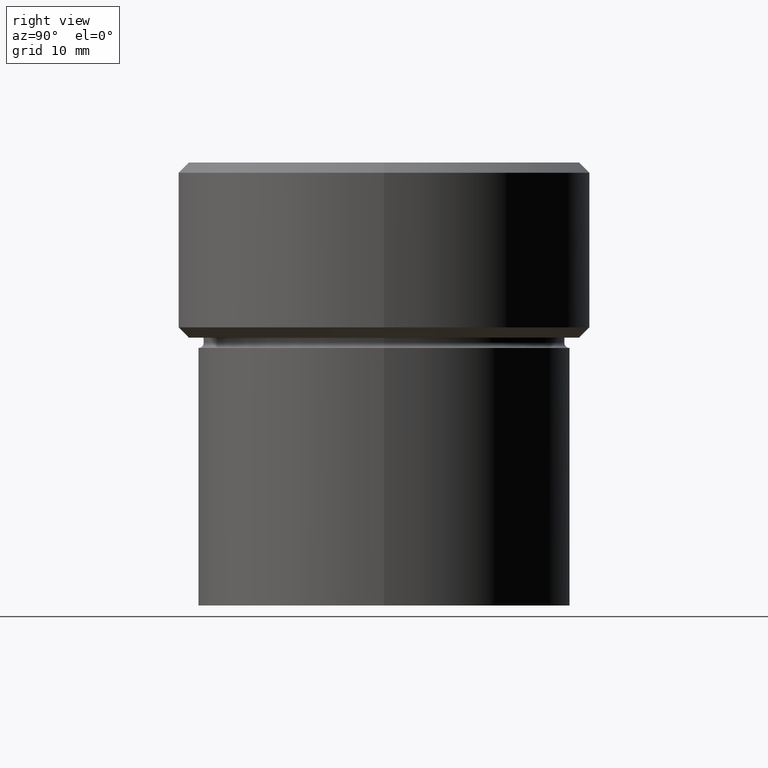
[diagram: clean part render]
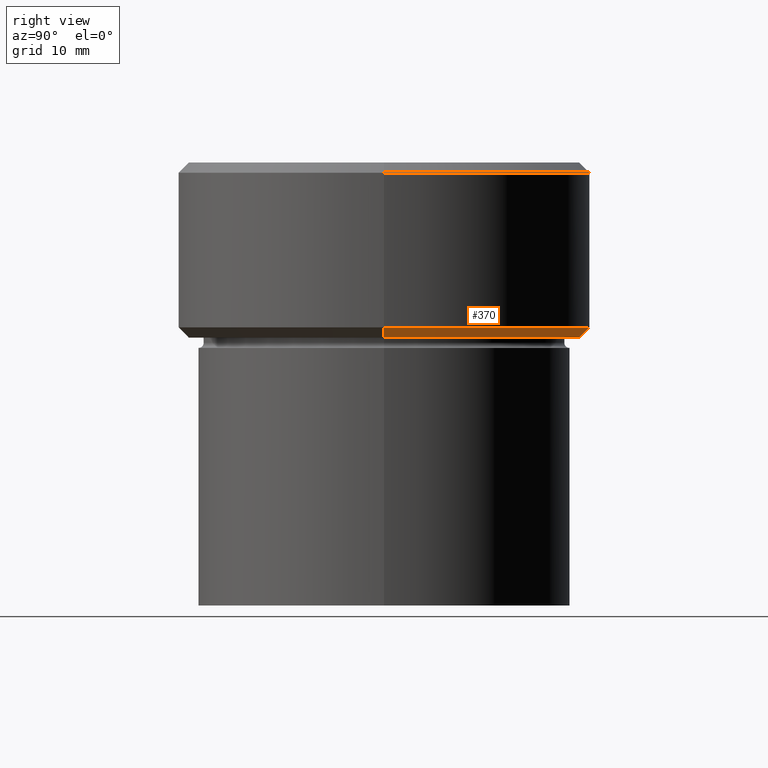
[diagram: same view with one face highlighted and labeled with its STEP entity id]
A machine part, right view. The second image highlights one B-rep face of the part: STEP entity #370.
In plain terms, the highlighted conical surface has half-angle 45 deg.
Its self-contained STEP definition (entity closure, byte-faithful):
#19 = DIRECTION ( 'NONE',  ( -0.000000000000000000, -0.000000000000000000, 1.000000000000000000 ) ) ;
#23 = LINE ( 'NONE', #318, #305 ) ;
#25 = CARTESIAN_POINT ( 'NONE',  ( -19.00000000000000355, 2.388061258337338939E-15, -17.00000000000000000 ) ) ;
#26 = VERTEX_POINT ( 'NONE', #342 ) ;
#65 = VECTOR ( 'NONE', #158, 1000.000000000000114 ) ;
#71 = LINE ( 'NONE', #371, #65 ) ;
#74 = AXIS2_PLACEMENT_3D ( 'NONE', #287, #291, #328 ) ;
#83 = VERTEX_POINT ( 'NONE', #488 ) ;
#96 = AXIS2_PLACEMENT_3D ( 'NONE', #195, #19, #103 ) ;
#103 = DIRECTION ( 'NONE',  ( -1.000000000000000000, 0.000000000000000000, 0.000000000000000000 ) ) ;
#133 = EDGE_CURVE ( 'NONE', #26, #83, #23, .T. ) ;
#143 = DIRECTION ( 'NONE',  ( 0.000000000000000000, 0.000000000000000000, -1.000000000000000000 ) ) ;
#158 = DIRECTION ( 'NONE',  ( -0.7071067811865474617, 8.659560562354932858E-17, 0.7071067811865474617 ) ) ;
#169 = CIRCLE ( 'NONE', #378, 19.00000000000000355 ) ;
#174 = FACE_OUTER_BOUND ( 'NONE', #346, .T. ) ;
#195 = CARTESIAN_POINT ( 'NONE',  ( 0.000000000000000000, 0.000000000000000000, -16.00000000000000355 ) ) ;
#206 = ORIENTED_EDGE ( 'NONE', *, *, #531, .F. ) ;
#278 = DIRECTION ( 'NONE',  ( 0.7071067811865474617, 0.000000000000000000, 0.7071067811865474617 ) ) ;
#285 = ORIENTED_EDGE ( 'NONE', *, *, #524, .T. ) ;
#287 = CARTESIAN_POINT ( 'NONE',  ( 0.000000000000000000, 0.000000000000000000, -16.00000000000000355 ) ) ;
#291 = DIRECTION ( 'NONE',  ( -0.000000000000000000, -0.000000000000000000, 1.000000000000000000 ) ) ;
#305 = VECTOR ( 'NONE', #278, 1000.000000000000114 ) ;
#314 = EDGE_CURVE ( 'NONE', #83, #440, #457, .T. ) ;
#318 = CARTESIAN_POINT ( 'NONE',  ( 20.00000000000000000, 0.000000000000000000, -16.00000000000000355 ) ) ;
#320 = CONICAL_SURFACE ( 'NONE', #74, 20.00000000000000000, 0.7853981633974482790 ) ;
#323 = DIRECTION ( 'NONE',  ( -1.000000000000000000, 0.000000000000000000, 0.000000000000000000 ) ) ;
#328 = DIRECTION ( 'NONE',  ( 1.000000000000000000, 0.000000000000000000, 0.000000000000000000 ) ) ;
#329 = CARTESIAN_POINT ( 'NONE',  ( 0.000000000000000000, 0.000000000000000000, -17.00000000000000000 ) ) ;
#342 = CARTESIAN_POINT ( 'NONE',  ( 19.00000000000000355, 0.000000000000000000, -17.00000000000000000 ) ) ;
#346 = EDGE_LOOP ( 'NONE', ( #206, #285, #460, #382 ) ) ;
#370 = ADVANCED_FACE ( 'NONE', ( #174 ), #320, .T. ) ;
#371 = CARTESIAN_POINT ( 'NONE',  ( -20.00000000000000000, 2.449293598294706513E-15, -16.00000000000000355 ) ) ;
#378 = AXIS2_PLACEMENT_3D ( 'NONE', #329, #143, #323 ) ;
#382 = ORIENTED_EDGE ( 'NONE', *, *, #133, .F. ) ;
#425 = VERTEX_POINT ( 'NONE', #25 ) ;
#440 = VERTEX_POINT ( 'NONE', #442 ) ;
#442 = CARTESIAN_POINT ( 'NONE',  ( -20.00000000000000000, 2.449293598294706513E-15, -16.00000000000000355 ) ) ;
#457 = CIRCLE ( 'NONE', #96, 20.00000000000000000 ) ;
#460 = ORIENTED_EDGE ( 'NONE', *, *, #314, .F. ) ;
#488 = CARTESIAN_POINT ( 'NONE',  ( 20.00000000000000000, 0.000000000000000000, -16.00000000000000355 ) ) ;
#524 = EDGE_CURVE ( 'NONE', #425, #440, #71, .T. ) ;
#531 = EDGE_CURVE ( 'NONE', #425, #26, #169, .T. ) ;